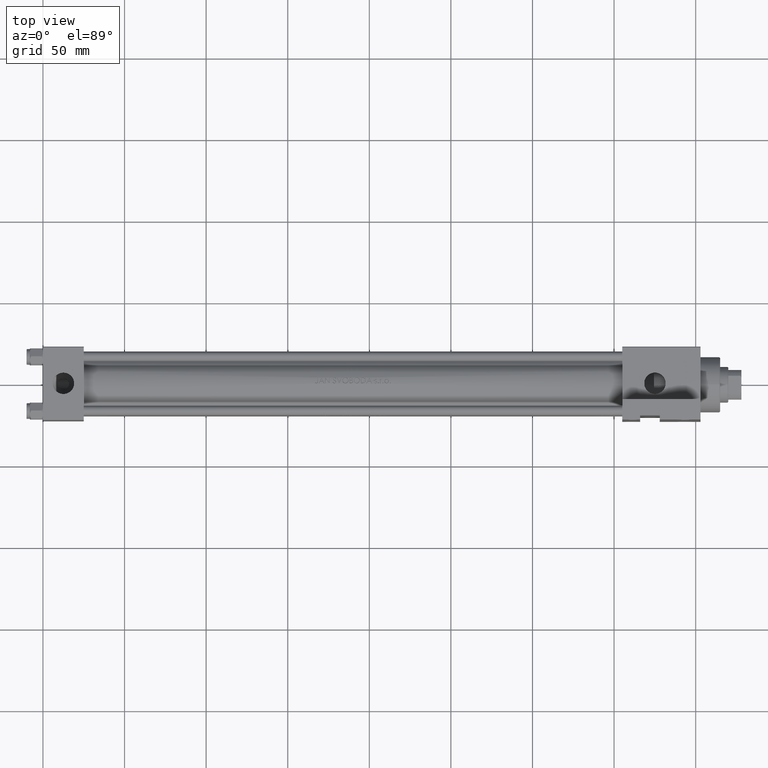
[diagram: clean part render]
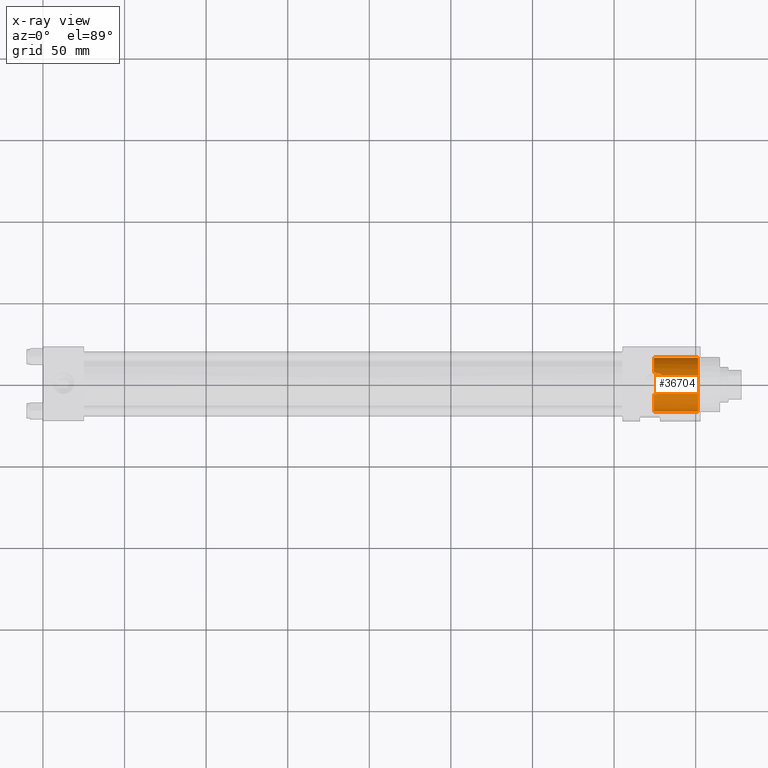
[diagram: x-ray — body ghosted, one internal face saturated and labeled with its STEP entity id]
A machine part, top view, then the same camera in x-ray: the body is ghosted and one INTERNAL B-rep face — a face not visible from any outside direction — is saturated and labeled: STEP entity #36704.
In plain terms, the highlighted cylindrical surface (edge-blend (fillet) strip) has radius 16.5 mm, axis along (1, 0, 0).
Its self-contained STEP definition (entity closure, byte-faithful):
#778 = CARTESIAN_POINT ( 'NONE',  ( 380.9152909999797316, -16.32739268020747403, -2.914679961596269298 ) ) ;
#790 = CARTESIAN_POINT ( 'NONE',  ( 375.0000000000000568, -14.90381159301204939, 6.579999999999992077 ) ) ;
#2425 = CARTESIAN_POINT ( 'NONE',  ( 376.7143978928019123, -15.00324899027946124, 6.367404972463830859 ) ) ;
#2703 = CARTESIAN_POINT ( 'NONE',  ( 374.3000000000000114, 0.000000000000000000, -16.99999999999999645 ) ) ;
#2909 = CARTESIAN_POINT ( 'NONE',  ( 379.0044194477453630, -15.47541940897810875, 5.225555808626266341 ) ) ;
#3784 = VERTEX_POINT ( 'NONE', #44408 ) ;
#4277 = CARTESIAN_POINT ( 'NONE',  ( 374.3000000000000114, -15.35370509061272415, -6.542660009506818142 ) ) ;
#5230 = CARTESIAN_POINT ( 'NONE',  ( 375.0000000000000568, -15.33895693976615071, -6.579999999999984972 ) ) ;
#5702 = CARTESIAN_POINT ( 'NONE',  ( 375.0000000000000568, -14.90381159301204939, 6.579999999999992077 ) ) ;
#5732 = CIRCLE ( 'NONE', #21158, 16.50000000000000000 ) ;
#5785 = CARTESIAN_POINT ( 'NONE',  ( 401.5000000000000000, 0.000000000000000000, -0.4999999999999967804 ) ) ;
#5801 = CARTESIAN_POINT ( 'NONE',  ( 378.3001356602297278, -15.28950433861737501, 5.708499388656715468 ) ) ;
#5982 = ORIENTED_EDGE ( 'NONE', *, *, #14217, .T. ) ;
#6281 = CARTESIAN_POINT ( 'NONE',  ( 375.8672262143391549, -14.92450725701554859, 6.536889544069371283 ) ) ;
#6917 = CYLINDRICAL_SURFACE ( 'NONE', #28788, 16.50000000000000000 ) ;
#7217 = VECTOR ( 'NONE', #31617, 1000.000000000000000 ) ;
#7997 = CARTESIAN_POINT ( 'NONE',  ( 380.2294062955909340, -16.12552788553619010, -3.999511881281994086 ) ) ;
#8232 = CARTESIAN_POINT ( 'NONE',  ( 381.4150129121088639, -16.47223324460452432, -1.480115068709078052 ) ) ;
#8367 = CARTESIAN_POINT ( 'NONE',  ( 374.3000000000000114, -15.35370509061272415, -6.542660009506818142 ) ) ;
#8601 = CARTESIAN_POINT ( 'NONE',  ( 374.5341069302495498, -15.34384745132401839, -6.567707138799266708 ) ) ;
#8699 = CARTESIAN_POINT ( 'NONE',  ( 375.0000000000000568, -15.33895693976615071, -6.579999999999984972 ) ) ;
#8924 = CARTESIAN_POINT ( 'NONE',  ( 374.3000000000000114, 0.000000000000000000, -16.99999999999999645 ) ) ;
#8943 = CARTESIAN_POINT ( 'NONE',  ( 379.0284776740527377, -15.81237954518120681, -5.220358165594013222 ) ) ;
#9663 = CARTESIAN_POINT ( 'NONE',  ( 381.2284342886651984, -16.28834046731282825, 2.164775913349327841 ) ) ;
#10647 = DIRECTION ( 'NONE',  ( 1.000000000000000000, -0.000000000000000000, -0.000000000000000000 ) ) ;
#11626 = CARTESIAN_POINT ( 'NONE',  ( 379.3574914770862279, -15.89197804239858947, -4.948973207531823348 ) ) ;
#12597 = VERTEX_POINT ( 'NONE', #31132 ) ;
#13532 = CARTESIAN_POINT ( 'NONE',  ( 381.5809669525390859, -16.49848120805964058, -0.1871076695943675872 ) ) ;
#13834 = VERTEX_POINT ( 'NONE', #24073 ) ;
#14217 = EDGE_CURVE ( 'NONE', #18094, #13834, #20012, .T. ) ;
#14616 = EDGE_CURVE ( 'NONE', #15190, #18671, #46366, .T. ) ;
#15190 = VERTEX_POINT ( 'NONE', #29118 ) ;
#15487 = CARTESIAN_POINT ( 'NONE',  ( 381.1646761068263913, -16.40157007731482963, -2.310968459578441880 ) ) ;
#15747 = DIRECTION ( 'NONE',  ( 1.000000000000000000, 0.000000000000000000, 0.000000000000000000 ) ) ;
#16287 = AXIS2_PLACEMENT_3D ( 'NONE', #34091, #15747, #26831 ) ;
#16662 = CARTESIAN_POINT ( 'NONE',  ( 379.3341328556404051, -15.57266778701109189, 4.955512184649332852 ) ) ;
#17134 = CARTESIAN_POINT ( 'NONE',  ( 381.5709677562898037, -16.50116693238018328, -0.4077177105366009413 ) ) ;
#17379 = CARTESIAN_POINT ( 'NONE',  ( 380.6923054650132485, -16.05392064770339289, 3.328442527785250515 ) ) ;
#17526 = EDGE_LOOP ( 'NONE', ( #31870, #38026, #21802, #41488, #36083, #5982, #27931, #34418 ) ) ;
#18094 = VERTEX_POINT ( 'NONE', #4277 ) ;
#18671 = VERTEX_POINT ( 'NONE', #44669 ) ;
#19090 = CARTESIAN_POINT ( 'NONE',  ( 377.1384851323426801, -15.47127985552786811, -6.237636073092440725 ) ) ;
#20012 = B_SPLINE_CURVE_WITH_KNOTS ( 'NONE', 3,
 ( #8367, #8601, #41936, #5230 ),
 .UNSPECIFIED., .F., .F.,
 ( 4, 4 ),
 ( 0.000000000000000000, 0.0006965685122027478289 ),
 .UNSPECIFIED. ) ;
#20503 = CARTESIAN_POINT ( 'NONE',  ( 380.2113291612782859, -15.86733303061777356, 4.040163306179455738 ) ) ;
#20726 = DIRECTION ( 'NONE',  ( 1.000000000000000000, 0.000000000000000000, 0.000000000000000000 ) ) ;
#20742 = CARTESIAN_POINT ( 'NONE',  ( 380.8954531384125630, -16.13952493269047750, 2.953520058509849999 ) ) ;
#21158 = AXIS2_PLACEMENT_3D ( 'NONE', #5785, #20726, #27508 ) ;
#21225 = CARTESIAN_POINT ( 'NONE',  ( 377.9258909046374129, -15.20539478107088271, 5.909229121773023508 ) ) ;
#21802 = ORIENTED_EDGE ( 'NONE', *, *, #38990, .T. ) ;
#22235 = EDGE_CURVE ( 'NONE', #44560, #18671, #32118, .T. ) ;
#22343 = FACE_OUTER_BOUND ( 'NONE', #17526, .T. ) ;
#22707 = CARTESIAN_POINT ( 'NONE',  ( 380.3567953874912178, -16.16208858154858774, -3.827128066706335208 ) ) ;
#22943 = CARTESIAN_POINT ( 'NONE',  ( 381.4983281949436105, -16.49200114892362379, -1.055870233478325204 ) ) ;
#23177 = CARTESIAN_POINT ( 'NONE',  ( 378.4940309364367295, -15.69908748261051734, -5.579806515649023524 ) ) ;
#23411 = CARTESIAN_POINT ( 'NONE',  ( 375.8656063113635923, -15.35602623177227777, -6.537463815344770168 ) ) ;
#23578 = DIRECTION ( 'NONE',  ( 1.000000000000000000, 0.000000000000000000, 0.000000000000000000 ) ) ;
#23827 = B_SPLINE_CURVE_WITH_KNOTS ( 'NONE', 3,
 ( #8699, #26333, #23411, #42033, #19090, #44710, #38169, #38407, #23177, #8943, #11626, #41310, #41077, #7997, #22707, #33839, #778, #15487, #30216, #44934, #8232, #22943, #46597, #17134, #13532, #35972, #45877, #23888, #9663, #20742, #17379, #20503, #46354, #31877, #16662, #2909, #28243, #5801, #21225, #35502, #2425, #6281, #42986, #39367 ),
 .UNSPECIFIED., .F., .F.,
 ( 4, 2, 2, 2, 2, 2, 2, 2, 2, 2, 2, 2, 2, 2, 2, 2, 2, 2, 2, 2, 2, 4 ),
 ( 0.0006965685122027478289, 0.001996785190668206970, 0.003297001869133666004, 0.003947110208366471848, 0.004597218547599277692, 0.005897435226064888514, 0.006547543565297690889, 0.007197651904530492396, 0.008497868582996188219, 0.009147976922229036564, 0.009798085261461884909, 0.01044819360069473325, 0.01109830193992758160, 0.01239851861839328002, 0.01369873529685897498, 0.01499895197532467341, 0.01629916865379036836, 0.01694927699302315946, 0.01759938533225594709, 0.01889960201072153276, 0.02019981868918711149, 0.02150003536765269369 ),
 .UNSPECIFIED. ) ;
#23888 = CARTESIAN_POINT ( 'NONE',  ( 381.3588356637530410, -16.35197207035328759, 1.746060943800902265 ) ) ;
#24073 = CARTESIAN_POINT ( 'NONE',  ( 375.0000000000000568, -15.33895693976615071, -6.579999999999984972 ) ) ;
#25248 = VECTOR ( 'NONE', #10647, 1000.000000000000000 ) ;
#25721 = CARTESIAN_POINT ( 'NONE',  ( 374.3000000000000114, 0.000000000000000000, -0.4999999999999967804 ) ) ;
#26333 = CARTESIAN_POINT ( 'NONE',  ( 375.4341129154130385, -15.33895693976615249, -6.579999999999984084 ) ) ;
#26831 = DIRECTION ( 'NONE',  ( 0.000000000000000000, 0.000000000000000000, -1.000000000000000000 ) ) ;
#27508 = DIRECTION ( 'NONE',  ( 0.000000000000000000, 0.000000000000000000, 1.000000000000000000 ) ) ;
#27687 = DIRECTION ( 'NONE',  ( 0.000000000000000000, 0.000000000000000000, -1.000000000000000000 ) ) ;
#27931 = ORIENTED_EDGE ( 'NONE', *, *, #30096, .T. ) ;
#28243 = CARTESIAN_POINT ( 'NONE',  ( 378.8315046802826487, -15.42728545299678800, 5.353628400115717056 ) ) ;
#28788 = AXIS2_PLACEMENT_3D ( 'NONE', #25721, #37089, #43861 ) ;
#28896 = CIRCLE ( 'NONE', #34301, 16.50000000000000000 ) ;
#29118 = CARTESIAN_POINT ( 'NONE',  ( 374.3000000000000114, 2.020667218593133100E-15, 16.00000000000000355 ) ) ;
#30096 = EDGE_CURVE ( 'NONE', #13834, #44560, #23827, .T. ) ;
#30216 = CARTESIAN_POINT ( 'NONE',  ( 381.2380364384483755, -16.42309107580809524, -2.104813929365229708 ) ) ;
#31060 = CARTESIAN_POINT ( 'NONE',  ( 374.7674089415833691, -14.90381159301204761, 6.579999999999984972 ) ) ;
#31132 = CARTESIAN_POINT ( 'NONE',  ( 401.5000000000000000, 2.020667218593133100E-15, 16.00000000000000355 ) ) ;
#31539 = CARTESIAN_POINT ( 'NONE',  ( 374.5326410810857283, -14.90974480628698196, 6.567550307416747835 ) ) ;
#31617 = DIRECTION ( 'NONE',  ( 1.000000000000000000, -0.000000000000000000, -0.000000000000000000 ) ) ;
#31870 = ORIENTED_EDGE ( 'NONE', *, *, #14616, .F. ) ;
#31877 = CARTESIAN_POINT ( 'NONE',  ( 379.4913386763624317, -15.62185234982736226, 4.813414449261110839 ) ) ;
#32118 = B_SPLINE_CURVE_WITH_KNOTS ( 'NONE', 3,
 ( #5702, #31060, #31539, #35395 ),
 .UNSPECIFIED., .F., .F.,
 ( 4, 4 ),
 ( 0.02150003536765269369, 0.02219197285507958084 ),
 .UNSPECIFIED. ) ;
#33839 = CARTESIAN_POINT ( 'NONE',  ( 380.7127167590447243, -16.26592437390081614, -3.293073257702346712 ) ) ;
#34091 = CARTESIAN_POINT ( 'NONE',  ( 374.3000000000000114, 0.000000000000000000, -0.4999999999999967804 ) ) ;
#34301 = AXIS2_PLACEMENT_3D ( 'NONE', #45565, #23578, #27687 ) ;
#34418 = ORIENTED_EDGE ( 'NONE', *, *, #22235, .T. ) ;
#35395 = CARTESIAN_POINT ( 'NONE',  ( 374.3000000000000114, -14.92149255237201189, 6.542660009506819918 ) ) ;
#35502 = CARTESIAN_POINT ( 'NONE',  ( 377.1352023701870735, -15.06229937542716790, 6.238648670809845420 ) ) ;
#35972 = CARTESIAN_POINT ( 'NONE',  ( 381.5778417032765333, -16.47736198929498386, 0.4683372378626164401 ) ) ;
#36083 = ORIENTED_EDGE ( 'NONE', *, *, #39485, .F. ) ;
#36581 = EDGE_CURVE ( 'NONE', #42930, #3784, #42480, .T. ) ;
#36704 = ADVANCED_FACE ( 'NONE', ( #22343 ), #6917, .F. ) ;
#37089 = DIRECTION ( 'NONE',  ( 1.000000000000000000, -0.000000000000000000, -0.000000000000000000 ) ) ;
#38026 = ORIENTED_EDGE ( 'NONE', *, *, #46022, .T. ) ;
#38169 = CARTESIAN_POINT ( 'NONE',  ( 377.9277837456259022, -15.59286003707434531, -5.896700753237607451 ) ) ;
#38407 = CARTESIAN_POINT ( 'NONE',  ( 378.3079685215799373, -15.66216623791877716, -5.692129803036766411 ) ) ;
#38990 = EDGE_CURVE ( 'NONE', #12597, #3784, #5732, .T. ) ;
#39367 = CARTESIAN_POINT ( 'NONE',  ( 375.0000000000000568, -14.90381159301204939, 6.579999999999992077 ) ) ;
#39485 = EDGE_CURVE ( 'NONE', #18094, #42930, #28896, .T. ) ;
#40101 = LINE ( 'NONE', #43725, #25248 ) ;
#41077 = CARTESIAN_POINT ( 'NONE',  ( 379.9566738476336241, -16.04954766180734183, -4.332917015252664150 ) ) ;
#41310 = CARTESIAN_POINT ( 'NONE',  ( 379.8113393517017471, -16.01015148505542740, -4.493698987271225853 ) ) ;
#41488 = ORIENTED_EDGE ( 'NONE', *, *, #36581, .F. ) ;
#41936 = CARTESIAN_POINT ( 'NONE',  ( 374.7674315422764835, -15.33895693976615071, -6.579999999999984972 ) ) ;
#42033 = CARTESIAN_POINT ( 'NONE',  ( 376.7232862870478698, -15.42257739805874728, -6.365374442724276882 ) ) ;
#42480 = LINE ( 'NONE', #8924, #7217 ) ;
#42930 = VERTEX_POINT ( 'NONE', #2703 ) ;
#42986 = CARTESIAN_POINT ( 'NONE',  ( 375.4370608312320883, -14.90381159301205294, 6.579999999999992966 ) ) ;
#43725 = CARTESIAN_POINT ( 'NONE',  ( 374.3000000000000114, 2.020667218593133100E-15, 16.00000000000000355 ) ) ;
#43861 = DIRECTION ( 'NONE',  ( 0.000000000000000000, 0.000000000000000000, -1.000000000000000000 ) ) ;
#44408 = CARTESIAN_POINT ( 'NONE',  ( 401.5000000000000000, 0.000000000000000000, -16.99999999999999645 ) ) ;
#44560 = VERTEX_POINT ( 'NONE', #790 ) ;
#44669 = CARTESIAN_POINT ( 'NONE',  ( 374.3000000000000114, -14.92149255237201189, 6.542660009506819918 ) ) ;
#44710 = CARTESIAN_POINT ( 'NONE',  ( 377.7335635805854395, -15.56042039305879854, -5.989176551187647135 ) ) ;
#44934 = CARTESIAN_POINT ( 'NONE',  ( 381.3629836567160964, -16.45835575231208381, -1.689905106513905020 ) ) ;
#45565 = CARTESIAN_POINT ( 'NONE',  ( 374.3000000000000114, 0.000000000000000000, -0.4999999999999967804 ) ) ;
#45877 = CARTESIAN_POINT ( 'NONE',  ( 381.5326949847450919, -16.44614851479039075, 0.8985633279690309339 ) ) ;
#46022 = EDGE_CURVE ( 'NONE', #15190, #12597, #40101, .T. ) ;
#46354 = CARTESIAN_POINT ( 'NONE',  ( 379.9408583155630481, -15.76925504840587244, 4.366124845913799568 ) ) ;
#46366 = CIRCLE ( 'NONE', #16287, 16.50000000000000000 ) ;
#46597 = CARTESIAN_POINT ( 'NONE',  ( 381.5296148987571883, -16.49789263875700129, -0.8414156283381248880 ) ) ;